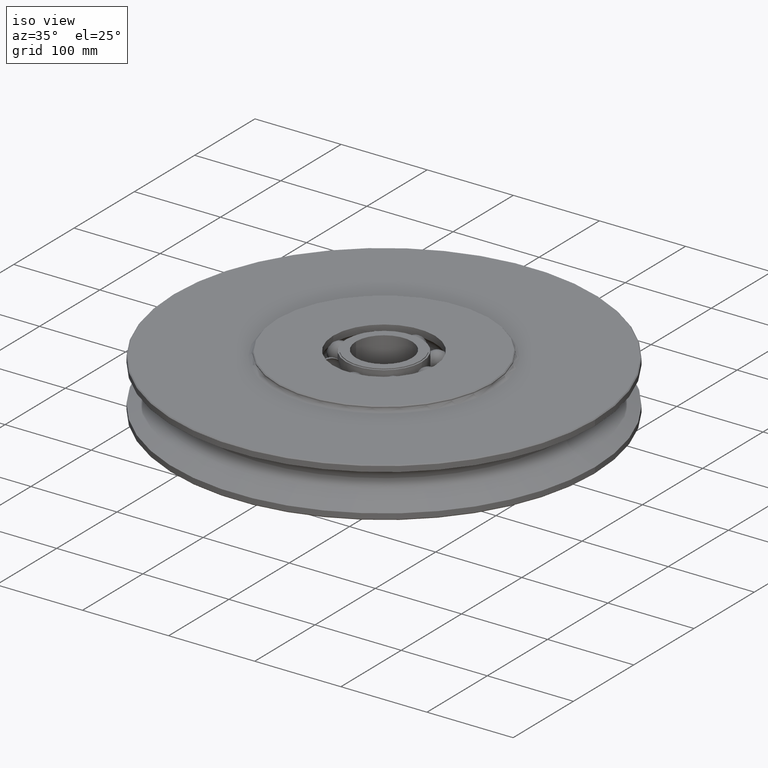
[diagram: clean part render]
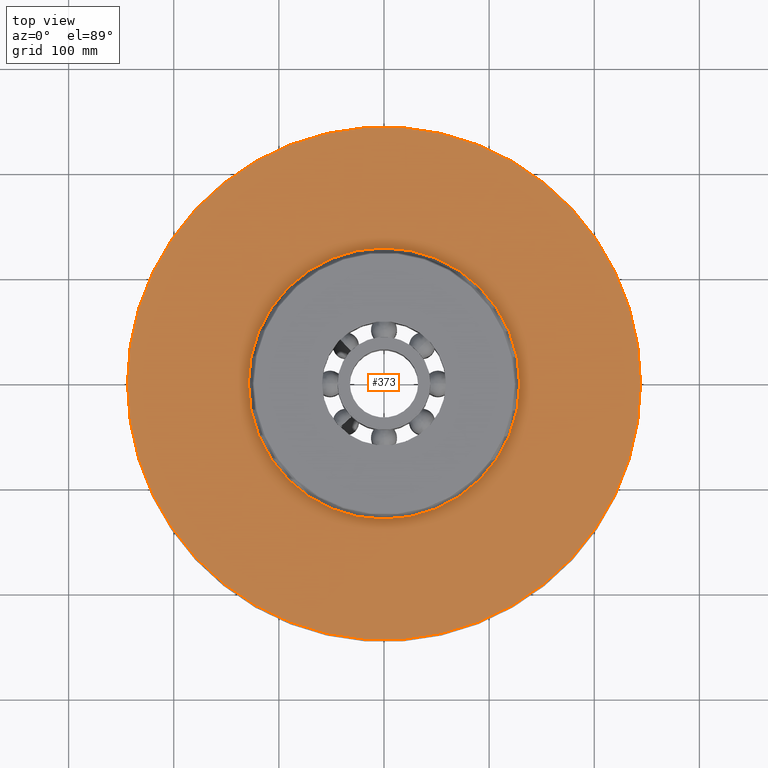
[diagram: tour spotlight — one face highlighted and labeled with its STEP entity id]
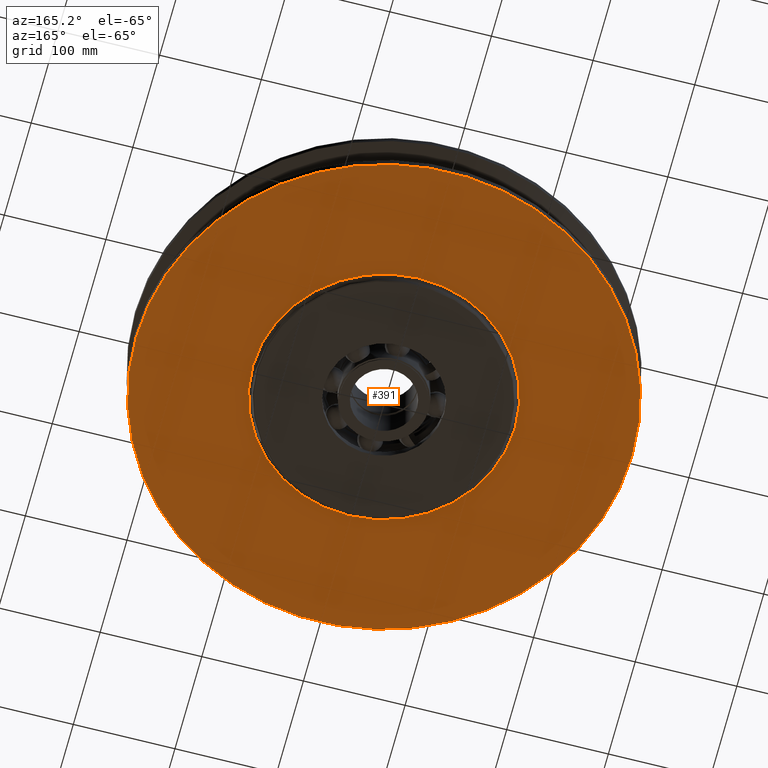
[diagram: tour spotlight — one face highlighted and labeled with its STEP entity id]
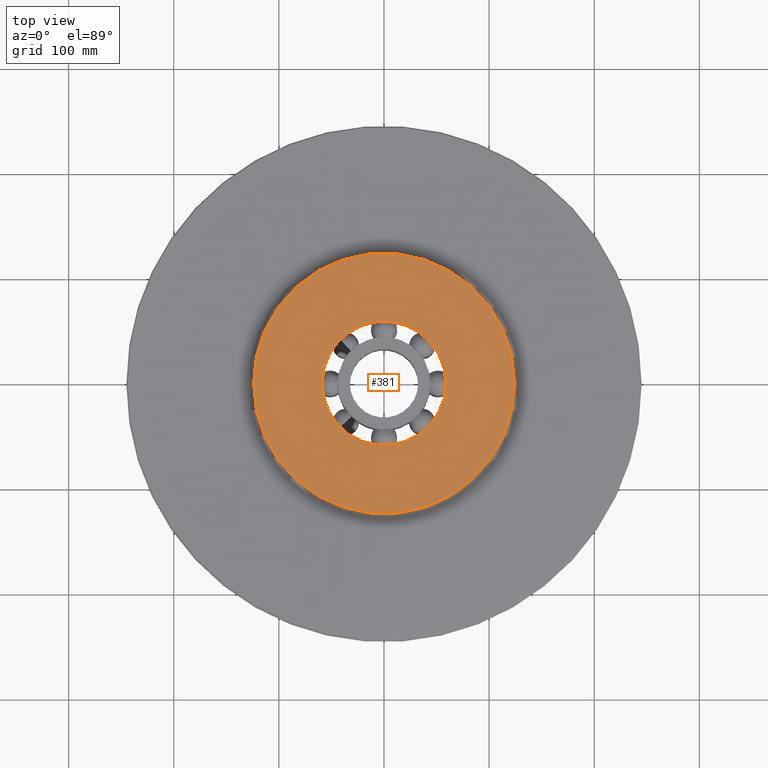
[diagram: tour spotlight — one face highlighted and labeled with its STEP entity id]
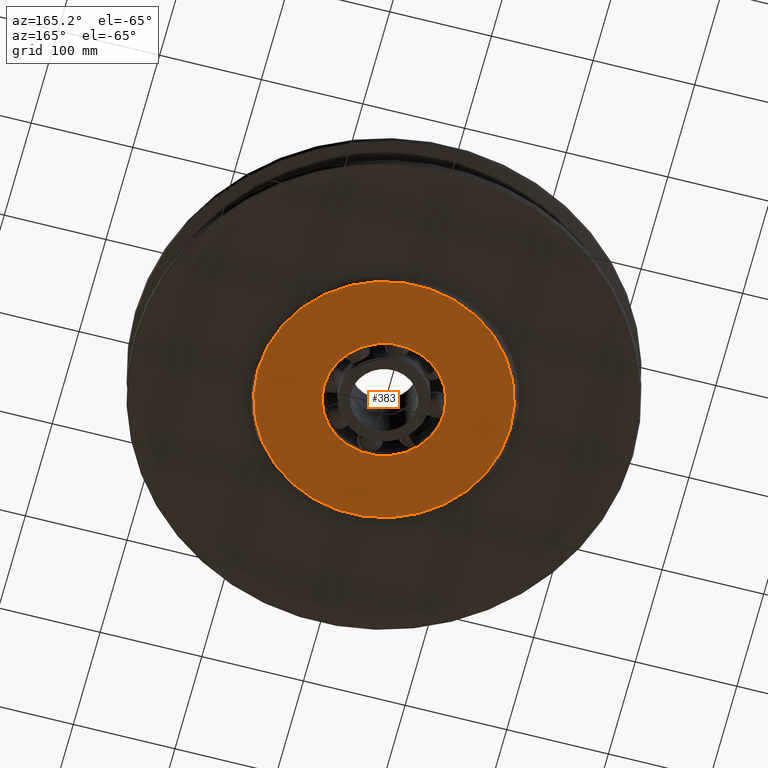
[diagram: tour spotlight — one face highlighted and labeled with its STEP entity id]
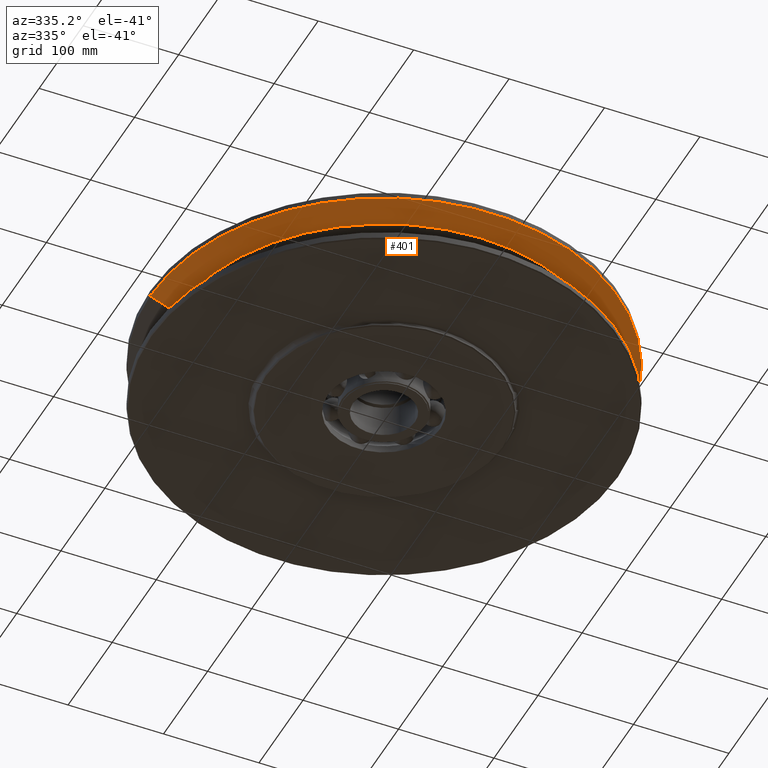
[diagram: tour spotlight — one face highlighted and labeled with its STEP entity id]
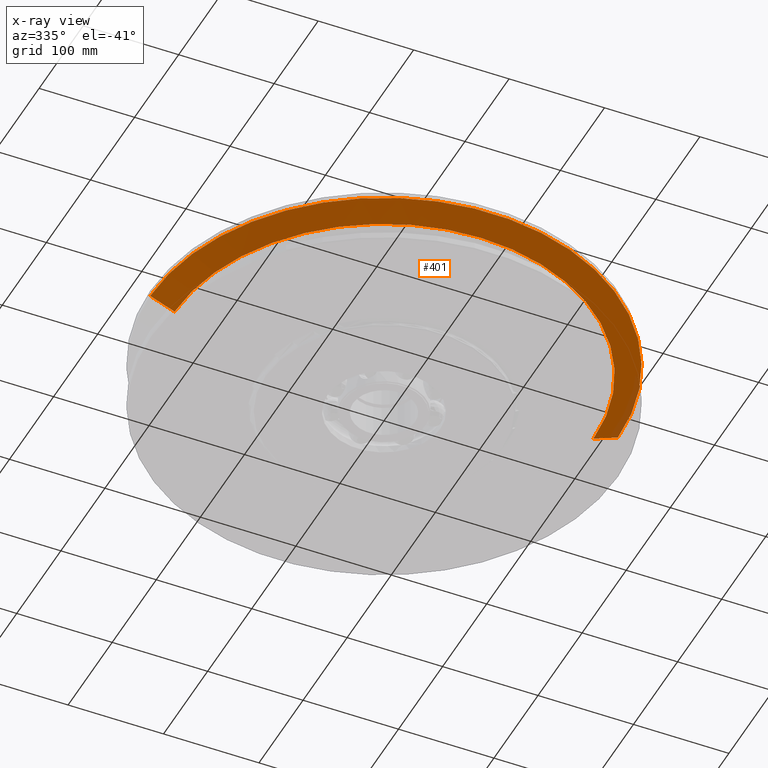
[diagram: x-ray of the same camera — body ghosted, this tour face saturated]
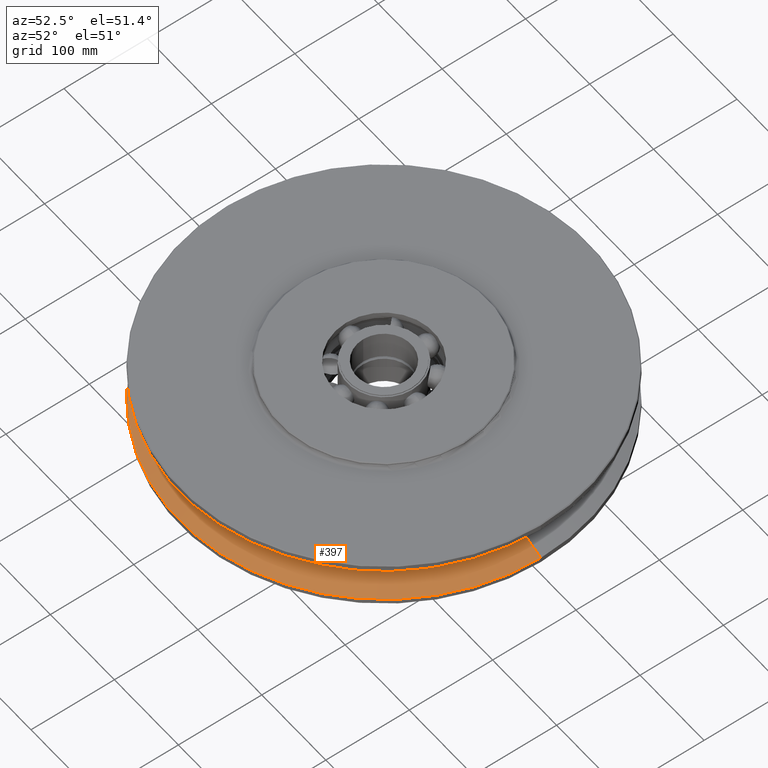
[diagram: tour spotlight — one face highlighted and labeled with its STEP entity id]
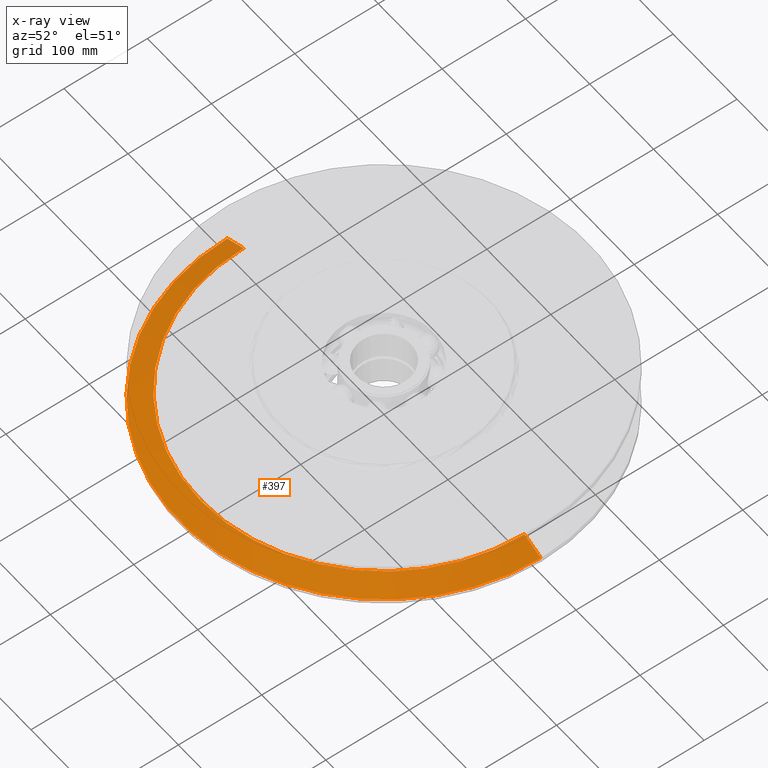
[diagram: x-ray of the same camera — body ghosted, this tour face saturated]
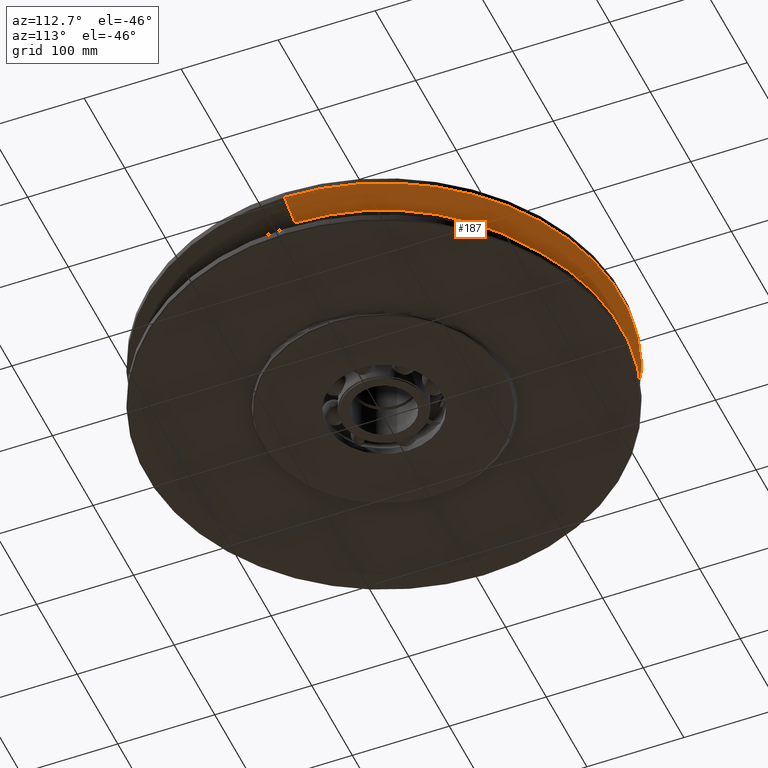
[diagram: tour spotlight — one face highlighted and labeled with its STEP entity id]
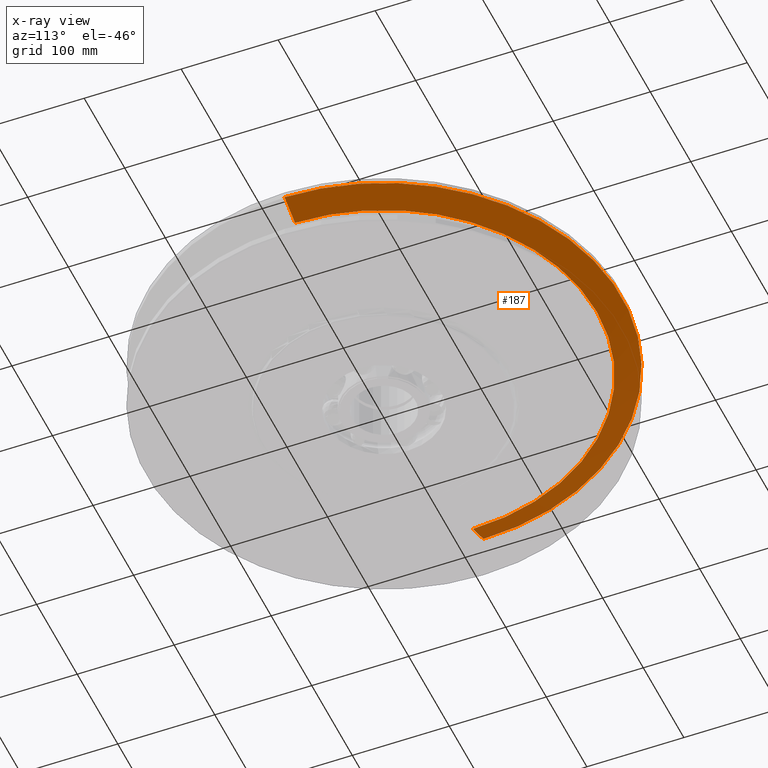
[diagram: x-ray of the same camera — body ghosted, this tour face saturated]
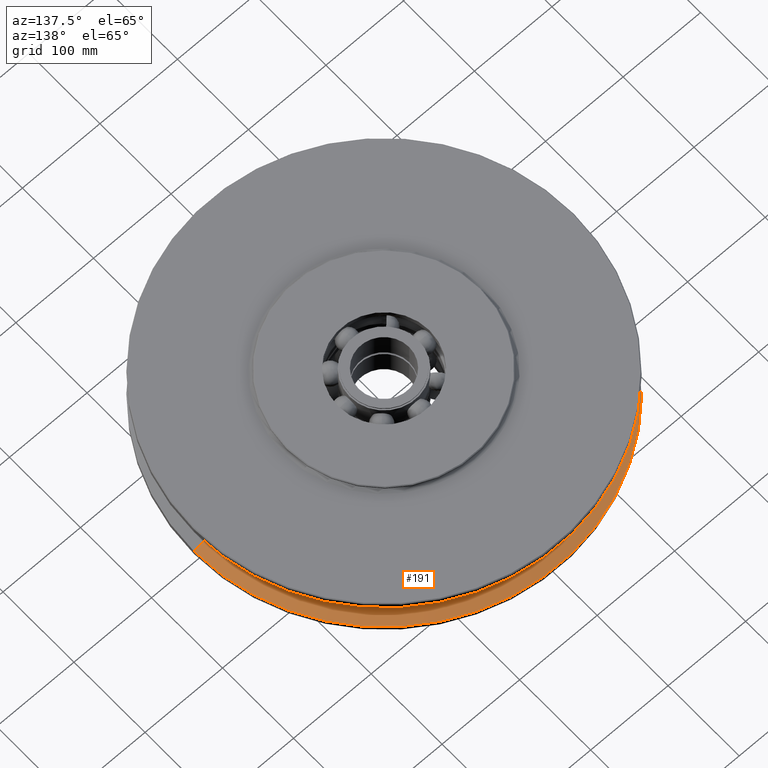
[diagram: tour spotlight — one face highlighted and labeled with its STEP entity id]
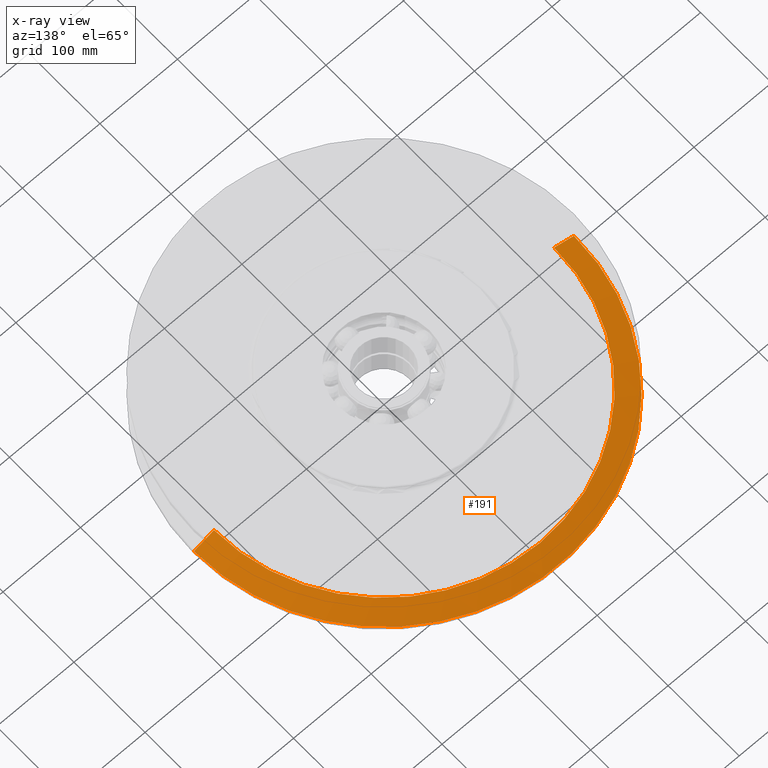
[diagram: x-ray of the same camera — body ghosted, this tour face saturated]
A machine part: a face-by-face anatomy tour. The part has 126 B-rep faces; the first image is the clean iso view, then the 8 largest visible faces are spotlighted one at a time (largest first), each with its STEP entity span.

Face 1 — top view, entity #373. In plain terms, the highlighted planar face has unit normal (0, 0, 1).
Definition (entity closure, byte-faithful):
#373=ADVANCED_FACE('',(#774,#775),#776,.T.);
#774=FACE_BOUND('',#1184,.T.);
#775=FACE_OUTER_BOUND('',#1185,.T.);
#776=PLANE('',#1186);
#1184=EDGE_LOOP('',(#2443,#2444));
#1185=EDGE_LOOP('',(#2445,#2446));
#1186=AXIS2_PLACEMENT_3D('',#2447,#2448,#2449);
#2443=ORIENTED_EDGE('',*,*,#3078,.F.);
#2444=ORIENTED_EDGE('',*,*,#2697,.F.);
#2445=ORIENTED_EDGE('',*,*,#2704,.T.);
#2446=ORIENTED_EDGE('',*,*,#3076,.T.);
#2447=CARTESIAN_POINT('',(186.5,0.0,29.0));
#2448=DIRECTION('',(0.0,0.0,1.0));
#2449=DIRECTION('',(1.0,0.0,0.0));
#2697=EDGE_CURVE('',#3327,#3329,#3330,.T.);
#2704=EDGE_CURVE('',#3335,#3339,#3341,.T.);
#3076=EDGE_CURVE('',#3339,#3335,#3893,.T.);
#3078=EDGE_CURVE('',#3329,#3327,#3895,.T.);
#3327=VERTEX_POINT('',#5376);
#3329=VERTEX_POINT('',#5378);
#3330=CIRCLE('',#5379,129.0);
#3335=VERTEX_POINT('',#5384);
#3339=VERTEX_POINT('',#5389);
#3341=CIRCLE('',#5392,244.0);
#3893=CIRCLE('',#9092,244.0);
#3895=CIRCLE('',#9094,129.0);
#5376=CARTESIAN_POINT('',(-129.0,1.57979437090009E-014,29.0));
#5378=CARTESIAN_POINT('',(129.0,0.0,29.0));
#5379=AXIS2_PLACEMENT_3D('',#9305,#9306,#9307);
#5384=CARTESIAN_POINT('',(244.0,0.0,29.0));
#5389=CARTESIAN_POINT('',(-244.0,2.98813818991954E-014,29.0));
#5392=AXIS2_PLACEMENT_3D('',#9319,#9320,#9321);
#9092=AXIS2_PLACEMENT_3D('',#9704,#9705,#9706);
#9094=AXIS2_PLACEMENT_3D('',#9707,#9708,#9709);
#9305=CARTESIAN_POINT('',(0.0,0.0,29.0));
#9306=DIRECTION('',(0.0,0.0,1.0));
#9307=DIRECTION('',(1.0,0.0,0.0));
#9319=CARTESIAN_POINT('',(0.0,0.0,29.0));
#9320=DIRECTION('',(0.0,0.0,1.0));
#9321=DIRECTION('',(1.0,0.0,0.0));
#9704=CARTESIAN_POINT('',(0.0,0.0,29.0));
#9705=DIRECTION('',(0.0,0.0,1.0));
#9706=DIRECTION('',(1.0,0.0,0.0));
#9707=CARTESIAN_POINT('',(0.0,0.0,29.0));
#9708=DIRECTION('',(0.0,0.0,1.0));
#9709=DIRECTION('',(1.0,0.0,0.0));

Face 2 — auxiliary view, entity #391. In plain terms, the highlighted planar face has unit normal (-0, 0, -1).
Definition (entity closure, byte-faithful):
#391=ADVANCED_FACE('',(#804,#805),#806,.T.);
#804=FACE_OUTER_BOUND('',#1214,.T.);
#805=FACE_BOUND('',#1215,.T.);
#806=PLANE('',#1216);
#1214=EDGE_LOOP('',(#2515,#2516));
#1215=EDGE_LOOP('',(#2517,#2518));
#1216=AXIS2_PLACEMENT_3D('',#2519,#2520,#2521);
#2515=ORIENTED_EDGE('',*,*,#2670,.F.);
#2516=ORIENTED_EDGE('',*,*,#3093,.F.);
#2517=ORIENTED_EDGE('',*,*,#3091,.T.);
#2518=ORIENTED_EDGE('',*,*,#2676,.T.);
#2519=CARTESIAN_POINT('',(186.5,0.0,-29.0));
#2520=DIRECTION('',(-0.0,0.0,-1.0));
#2521=DIRECTION('',(-1.0,-0.0,0.0));
#2670=EDGE_CURVE('',#3284,#3286,#3287,.T.);
#2676=EDGE_CURVE('',#3291,#3295,#3297,.T.);
#3091=EDGE_CURVE('',#3295,#3291,#3908,.T.);
#3093=EDGE_CURVE('',#3286,#3284,#3910,.T.);
#3284=VERTEX_POINT('',#5323);
#3286=VERTEX_POINT('',#5326);
#3287=CIRCLE('',#5327,244.0);
#3291=VERTEX_POINT('',#5332);
#3295=VERTEX_POINT('',#5336);
#3297=CIRCLE('',#5338,129.0);
#3908=CIRCLE('',#9107,129.0);
#3910=CIRCLE('',#9109,244.0);
#5323=CARTESIAN_POINT('',(244.0,0.0,-29.0));
#5326=CARTESIAN_POINT('',(-244.0,2.98813818991954E-014,-29.0));
#5327=AXIS2_PLACEMENT_3D('',#9260,#9261,#9262);
#5332=CARTESIAN_POINT('',(-129.0,1.57979437090009E-014,-29.0));
#5336=CARTESIAN_POINT('',(129.0,0.0,-29.0));
#5338=AXIS2_PLACEMENT_3D('',#9273,#9274,#9275);
#9107=AXIS2_PLACEMENT_3D('',#9722,#9723,#9724);
#9109=AXIS2_PLACEMENT_3D('',#9725,#9726,#9727);
#9260=CARTESIAN_POINT('',(0.0,0.0,-29.0));
#9261=DIRECTION('',(0.0,0.0,1.0));
#9262=DIRECTION('',(1.0,0.0,0.0));
#9273=CARTESIAN_POINT('',(0.0,0.0,-29.0));
#9274=DIRECTION('',(0.0,0.0,1.0));
#9275=DIRECTION('',(1.0,0.0,0.0));
#9722=CARTESIAN_POINT('',(0.0,0.0,-29.0));
#9723=DIRECTION('',(0.0,0.0,1.0));
#9724=DIRECTION('',(1.0,0.0,0.0));
#9725=CARTESIAN_POINT('',(0.0,0.0,-29.0));
#9726=DIRECTION('',(0.0,0.0,1.0));
#9727=DIRECTION('',(1.0,0.0,0.0));

Face 3 — top view, entity #381. In plain terms, the highlighted planar face has unit normal (0, 0, 1).
Definition (entity closure, byte-faithful):
#381=ADVANCED_FACE('',(#787,#788),#789,.T.);
#787=FACE_BOUND('',#1197,.T.);
#788=FACE_OUTER_BOUND('',#1198,.T.);
#789=PLANE('',#1199);
#1197=EDGE_LOOP('',(#2475,#2476));
#1198=EDGE_LOOP('',(#2477,#2478));
#1199=AXIS2_PLACEMENT_3D('',#2479,#2480,#2481);
#2475=ORIENTED_EDGE('',*,*,#3041,.T.);
#2476=ORIENTED_EDGE('',*,*,#2786,.T.);
#2477=ORIENTED_EDGE('',*,*,#2690,.T.);
#2478=ORIENTED_EDGE('',*,*,#3083,.T.);
#2479=CARTESIAN_POINT('',(62.0,0.0,35.0));
#2480=DIRECTION('',(0.0,0.0,1.0));
#2481=DIRECTION('',(1.0,0.0,0.0));
#2690=EDGE_CURVE('',#3313,#3317,#3319,.T.);
#2786=EDGE_CURVE('',#3479,#3477,#3480,.T.);
#3041=EDGE_CURVE('',#3477,#3479,#3858,.T.);
#3083=EDGE_CURVE('',#3317,#3313,#3900,.T.);
#3313=VERTEX_POINT('',#5358);
#3317=VERTEX_POINT('',#5363);
#3319=CIRCLE('',#5366,124.0);
#3477=VERTEX_POINT('',#6265);
#3479=VERTEX_POINT('',#6268);
#3480=CIRCLE('',#6269,59.0);
#3858=CIRCLE('',#8752,59.0);
#3900=CIRCLE('',#9099,124.0);
#5358=CARTESIAN_POINT('',(124.0,0.0,35.0));
#5363=CARTESIAN_POINT('',(-124.0,1.51856203094272E-014,35.0));
#5366=AXIS2_PLACEMENT_3D('',#9294,#9295,#9296);
#6265=CARTESIAN_POINT('',(59.0,0.0,35.0));
#6268=CARTESIAN_POINT('',(-59.0,7.22541611496938E-015,35.0));
#6269=AXIS2_PLACEMENT_3D('',#9422,#9423,#9424);
#8752=AXIS2_PLACEMENT_3D('',#9689,#9690,#9691);
#9099=AXIS2_PLACEMENT_3D('',#9713,#9714,#9715);
#9294=CARTESIAN_POINT('',(0.0,0.0,35.0));
#9295=DIRECTION('',(0.0,0.0,1.0));
#9296=DIRECTION('',(1.0,0.0,0.0));
#9422=CARTESIAN_POINT('',(0.0,0.0,35.0));
#9423=DIRECTION('',(0.0,0.0,-1.0));
#9424=DIRECTION('',(1.0,0.0,0.0));
#9689=CARTESIAN_POINT('',(0.0,0.0,35.0));
#9690=DIRECTION('',(0.0,0.0,-1.0));
#9691=DIRECTION('',(1.0,0.0,0.0));
#9713=CARTESIAN_POINT('',(0.0,0.0,35.0));
#9714=DIRECTION('',(0.0,0.0,1.0));
#9715=DIRECTION('',(1.0,0.0,0.0));

Face 4 — auxiliary view, entity #383. In plain terms, the highlighted planar face has unit normal (-0, 0, -1).
Definition (entity closure, byte-faithful):
#383=ADVANCED_FACE('',(#791,#792),#793,.T.);
#791=FACE_BOUND('',#1201,.T.);
#792=FACE_OUTER_BOUND('',#1202,.T.);
#793=PLANE('',#1203);
#1201=EDGE_LOOP('',(#2483,#2484));
#1202=EDGE_LOOP('',(#2485,#2486));
#1203=AXIS2_PLACEMENT_3D('',#2487,#2488,#2489);
#2483=ORIENTED_EDGE('',*,*,#2984,.T.);
#2484=ORIENTED_EDGE('',*,*,#2898,.T.);
#2485=ORIENTED_EDGE('',*,*,#2684,.F.);
#2486=ORIENTED_EDGE('',*,*,#3086,.F.);
#2487=CARTESIAN_POINT('',(62.0,0.0,-35.0));
#2488=DIRECTION('',(-0.0,0.0,-1.0));
#2489=DIRECTION('',(-1.0,-0.0,0.0));
#2684=EDGE_CURVE('',#3306,#3308,#3309,.T.);
#2898=EDGE_CURVE('',#3667,#3665,#3668,.T.);
#2984=EDGE_CURVE('',#3665,#3667,#3793,.T.);
#3086=EDGE_CURVE('',#3308,#3306,#3903,.T.);
#3306=VERTEX_POINT('',#5349);
#3308=VERTEX_POINT('',#5352);
#3309=CIRCLE('',#5353,124.0);
#3665=VERTEX_POINT('',#7479);
#3667=VERTEX_POINT('',#7482);
#3668=CIRCLE('',#7483,59.0);
#3793=CIRCLE('',#8143,59.0);
#3903=CIRCLE('',#9102,124.0);
#5349=CARTESIAN_POINT('',(124.0,0.0,-35.0));
#5352=CARTESIAN_POINT('',(-124.0,1.51856203094272E-014,-35.0));
#5353=AXIS2_PLACEMENT_3D('',#9285,#9286,#9287);
#7479=CARTESIAN_POINT('',(59.0,0.0,-35.0));
#7482=CARTESIAN_POINT('',(-59.0,-7.22541611496938E-015,-35.0));
#7483=AXIS2_PLACEMENT_3D('',#9558,#9559,#9560);
#8143=AXIS2_PLACEMENT_3D('',#9659,#9660,#9661);
#9102=AXIS2_PLACEMENT_3D('',#9716,#9717,#9718);
#9285=CARTESIAN_POINT('',(0.0,0.0,-35.0));
#9286=DIRECTION('',(0.0,0.0,1.0));
#9287=DIRECTION('',(1.0,0.0,0.0));
#9558=CARTESIAN_POINT('',(0.0,0.0,-35.0));
#9559=DIRECTION('',(0.0,-0.0,1.0));
#9560=DIRECTION('',(1.0,0.0,0.0));
#9659=CARTESIAN_POINT('',(0.0,0.0,-35.0));
#9660=DIRECTION('',(0.0,-0.0,1.0));
#9661=DIRECTION('',(1.0,0.0,0.0));
#9716=CARTESIAN_POINT('',(0.0,0.0,-35.0));
#9717=DIRECTION('',(0.0,0.0,1.0));
#9718=DIRECTION('',(1.0,0.0,0.0));

Face 5 — auxiliary view, entity #401. An x-ray twin of the same camera follows (body ghosted, this face saturated) — the face is partly hidden behind the body. In plain terms, the highlighted conical surface has half-angle 67.5 deg.
Definition (entity closure, byte-faithful):
#401=ADVANCED_FACE('',(#820),#821,.T.);
#820=FACE_OUTER_BOUND('',#1230,.T.);
#821=CONICAL_SURFACE('',#1231,232.2038995,1.17809723659734);
#1230=EDGE_LOOP('',(#2555,#2556,#2557,#2558));
#1231=AXIS2_PLACEMENT_3D('',#2559,#2560,#2561);
#2555=ORIENTED_EDGE('',*,*,#2652,.T.);
#2556=ORIENTED_EDGE('',*,*,#3074,.F.);
#2557=ORIENTED_EDGE('',*,*,#2653,.T.);
#2558=ORIENTED_EDGE('',*,*,#2650,.T.);
#2559=CARTESIAN_POINT('',(0.0,0.0,16.3868725));
#2560=DIRECTION('',(-0.0,-0.0,1.0));
#2561=DIRECTION('',(1.0,0.0,0.0));
#2650=EDGE_CURVE('',#3106,#3108,#3257,.T.);
#2652=EDGE_CURVE('',#3108,#3259,#3260,.T.);
#2653=EDGE_CURVE('',#3261,#3106,#3262,.T.);
#3074=EDGE_CURVE('',#3261,#3259,#3891,.T.);
#3106=VERTEX_POINT('',#3923);
#3108=VERTEX_POINT('',#3925);
#3257=CIRCLE('',#5290,219.407799);
#3259=VERTEX_POINT('',#5292);
#3260=LINE('',#5293,#5294);
#3261=VERTEX_POINT('',#5295);
#3262=LINE('',#5296,#5297);
#3891=CIRCLE('',#9090,245.0);
#3923=CARTESIAN_POINT('',(-219.407799,2.68697058753316E-014,11.086554));
#3925=CARTESIAN_POINT('',(219.407799,0.0,11.086554));
#5290=AXIS2_PLACEMENT_3D('',#9229,#9230,#9231);
#5292=CARTESIAN_POINT('',(245.0,0.0,21.687191));
#5293=CARTESIAN_POINT('',(232.2038995,-2.84367762272209E-014,16.3868725));
#5294=VECTOR('',#9232,1.0);
#5295=CARTESIAN_POINT('',(-245.0,3.00038465791101E-014,21.687191));
#5296=CARTESIAN_POINT('',(-232.2038995,2.84367762272209E-014,16.3868725));
#5297=VECTOR('',#9233,1.0);
#9090=AXIS2_PLACEMENT_3D('',#9701,#9702,#9703);
#9229=CARTESIAN_POINT('',(0.0,0.0,11.086554));
#9230=DIRECTION('',(0.0,0.0,1.0));
#9231=DIRECTION('',(1.0,0.0,0.0));
#9232=DIRECTION('',(0.923879529258923,-1.1314261083047E-016,0.382683440216991));
#9233=DIRECTION('',(0.923879529258923,-1.1314261083047E-016,-0.382683440216991));
#9701=CARTESIAN_POINT('',(0.0,0.0,21.687191));
#9702=DIRECTION('',(0.0,0.0,1.0));
#9703=DIRECTION('',(1.0,0.0,0.0));

Face 6 — auxiliary view, entity #397. An x-ray twin of the same camera follows (body ghosted, this face saturated) — the face is partly hidden behind the body. In plain terms, the highlighted conical surface has half-angle 67.5 deg.
Definition (entity closure, byte-faithful):
#397=ADVANCED_FACE('',(#814),#815,.T.);
#814=FACE_OUTER_BOUND('',#1224,.T.);
#815=CONICAL_SURFACE('',#1225,232.2038995,1.17809723659734);
#1224=EDGE_LOOP('',(#2539,#2540,#2541,#2542));
#1225=AXIS2_PLACEMENT_3D('',#2543,#2544,#2545);
#2539=ORIENTED_EDGE('',*,*,#2660,.T.);
#2540=ORIENTED_EDGE('',*,*,#2657,.F.);
#2541=ORIENTED_EDGE('',*,*,#2662,.T.);
#2542=ORIENTED_EDGE('',*,*,#3097,.T.);
#2543=CARTESIAN_POINT('',(0.0,0.0,-16.3868725));
#2544=DIRECTION('',(-0.0,-0.0,-1.0));
#2545=DIRECTION('',(1.0,0.0,0.0));
#2657=EDGE_CURVE('',#3265,#3267,#3268,.T.);
#2660=EDGE_CURVE('',#3271,#3267,#3272,.T.);
#2662=EDGE_CURVE('',#3265,#3273,#3275,.T.);
#3097=EDGE_CURVE('',#3273,#3271,#3914,.T.);
#3265=VERTEX_POINT('',#5300);
#3267=VERTEX_POINT('',#5302);
#3268=CIRCLE('',#5303,219.407799);
#3271=VERTEX_POINT('',#5306);
#3272=LINE('',#5307,#5308);
#3273=VERTEX_POINT('',#5309);
#3275=LINE('',#5311,#5312);
#3914=CIRCLE('',#9113,245.0);
#5300=CARTESIAN_POINT('',(-219.407799,2.68697058753316E-014,-11.086554));
#5302=CARTESIAN_POINT('',(219.407799,0.0,-11.086554));
#5303=AXIS2_PLACEMENT_3D('',#9240,#9241,#9242);
#5306=CARTESIAN_POINT('',(245.0,0.0,-21.687191));
#5307=CARTESIAN_POINT('',(232.2038995,-2.84367762272209E-014,-16.3868725));
#5308=VECTOR('',#9246,1.0);
#5309=CARTESIAN_POINT('',(-245.0,3.00038465791101E-014,-21.687191));
#5311=CARTESIAN_POINT('',(-232.2038995,2.84367762272209E-014,-16.3868725));
#5312=VECTOR('',#9250,1.0);
#9113=AXIS2_PLACEMENT_3D('',#9731,#9732,#9733);
#9240=CARTESIAN_POINT('',(0.0,0.0,-11.086554));
#9241=DIRECTION('',(0.0,0.0,1.0));
#9242=DIRECTION('',(1.0,0.0,0.0));
#9246=DIRECTION('',(-0.923879529258923,1.1314261083047E-016,0.382683440216991));
#9250=DIRECTION('',(-0.923879529258923,1.1314261083047E-016,-0.382683440216991));
#9731=CARTESIAN_POINT('',(0.0,0.0,-21.687191));
#9732=DIRECTION('',(0.0,0.0,1.0));
#9733=DIRECTION('',(1.0,0.0,0.0));

Face 7 — auxiliary view, entity #187. An x-ray twin of the same camera follows (body ghosted, this face saturated) — the face is partly hidden behind the body. In plain terms, the highlighted conical surface has half-angle 67.5 deg.
Definition (entity closure, byte-faithful):
#187=ADVANCED_FACE('',(#475),#476,.T.);
#475=FACE_OUTER_BOUND('',#885,.T.);
#476=CONICAL_SURFACE('',#886,232.2038995,1.17809723659734);
#885=EDGE_LOOP('',(#1379,#1380,#1381,#1382));
#886=AXIS2_PLACEMENT_3D('',#1383,#1384,#1385);
#1379=ORIENTED_EDGE('',*,*,#2652,.F.);
#1380=ORIENTED_EDGE('',*,*,#2566,.T.);
#1381=ORIENTED_EDGE('',*,*,#2653,.F.);
#1382=ORIENTED_EDGE('',*,*,#2654,.F.);
#1383=CARTESIAN_POINT('',(0.0,0.0,16.3868725));
#1384=DIRECTION('',(-0.0,-0.0,1.0));
#1385=DIRECTION('',(1.0,0.0,0.0));
#2566=EDGE_CURVE('',#3108,#3106,#3109,.T.);
#2652=EDGE_CURVE('',#3108,#3259,#3260,.T.);
#2653=EDGE_CURVE('',#3261,#3106,#3262,.T.);
#2654=EDGE_CURVE('',#3259,#3261,#3263,.T.);
#3106=VERTEX_POINT('',#3923);
#3108=VERTEX_POINT('',#3925);
#3109=CIRCLE('',#3926,219.407799);
#3259=VERTEX_POINT('',#5292);
#3260=LINE('',#5293,#5294);
#3261=VERTEX_POINT('',#5295);
#3262=LINE('',#5296,#5297);
#3263=CIRCLE('',#5298,245.0);
#3923=CARTESIAN_POINT('',(-219.407799,2.68697058753316E-014,11.086554));
#3925=CARTESIAN_POINT('',(219.407799,0.0,11.086554));
#3926=AXIS2_PLACEMENT_3D('',#9124,#9125,#9126);
#5292=CARTESIAN_POINT('',(245.0,0.0,21.687191));
#5293=CARTESIAN_POINT('',(232.2038995,-2.84367762272209E-014,16.3868725));
#5294=VECTOR('',#9232,1.0);
#5295=CARTESIAN_POINT('',(-245.0,3.00038465791101E-014,21.687191));
#5296=CARTESIAN_POINT('',(-232.2038995,2.84367762272209E-014,16.3868725));
#5297=VECTOR('',#9233,1.0);
#5298=AXIS2_PLACEMENT_3D('',#9234,#9235,#9236);
#9124=CARTESIAN_POINT('',(0.0,0.0,11.086554));
#9125=DIRECTION('',(0.0,0.0,1.0));
#9126=DIRECTION('',(1.0,0.0,0.0));
#9232=DIRECTION('',(0.923879529258923,-1.1314261083047E-016,0.382683440216991));
#9233=DIRECTION('',(0.923879529258923,-1.1314261083047E-016,-0.382683440216991));
#9234=CARTESIAN_POINT('',(0.0,0.0,21.687191));
#9235=DIRECTION('',(0.0,0.0,1.0));
#9236=DIRECTION('',(1.0,0.0,0.0));

Face 8 — auxiliary view, entity #191. An x-ray twin of the same camera follows (body ghosted, this face saturated) — the face is partly hidden behind the body. In plain terms, the highlighted conical surface has half-angle 67.5 deg.
Definition (entity closure, byte-faithful):
#191=ADVANCED_FACE('',(#481),#482,.T.);
#481=FACE_OUTER_BOUND('',#891,.T.);
#482=CONICAL_SURFACE('',#892,232.2038995,1.17809723659734);
#891=EDGE_LOOP('',(#1395,#1396,#1397,#1398));
#892=AXIS2_PLACEMENT_3D('',#1399,#1400,#1401);
#1395=ORIENTED_EDGE('',*,*,#2660,.F.);
#1396=ORIENTED_EDGE('',*,*,#2661,.T.);
#1397=ORIENTED_EDGE('',*,*,#2662,.F.);
#1398=ORIENTED_EDGE('',*,*,#2663,.F.);
#1399=CARTESIAN_POINT('',(0.0,0.0,-16.3868725));
#1400=DIRECTION('',(-0.0,-0.0,-1.0));
#1401=DIRECTION('',(1.0,0.0,0.0));
#2660=EDGE_CURVE('',#3271,#3267,#3272,.T.);
#2661=EDGE_CURVE('',#3271,#3273,#3274,.T.);
#2662=EDGE_CURVE('',#3265,#3273,#3275,.T.);
#2663=EDGE_CURVE('',#3267,#3265,#3276,.T.);
#3265=VERTEX_POINT('',#5300);
#3267=VERTEX_POINT('',#5302);
#3271=VERTEX_POINT('',#5306);
#3272=LINE('',#5307,#5308);
#3273=VERTEX_POINT('',#5309);
#3274=CIRCLE('',#5310,245.0);
#3275=LINE('',#5311,#5312);
#3276=CIRCLE('',#5313,219.407799);
#5300=CARTESIAN_POINT('',(-219.407799,2.68697058753316E-014,-11.086554));
#5302=CARTESIAN_POINT('',(219.407799,0.0,-11.086554));
#5306=CARTESIAN_POINT('',(245.0,0.0,-21.687191));
#5307=CARTESIAN_POINT('',(232.2038995,-2.84367762272209E-014,-16.3868725));
#5308=VECTOR('',#9246,1.0);
#5309=CARTESIAN_POINT('',(-245.0,3.00038465791101E-014,-21.687191));
#5310=AXIS2_PLACEMENT_3D('',#9247,#9248,#9249);
#5311=CARTESIAN_POINT('',(-232.2038995,2.84367762272209E-014,-16.3868725));
#5312=VECTOR('',#9250,1.0);
#5313=AXIS2_PLACEMENT_3D('',#9251,#9252,#9253);
#9246=DIRECTION('',(-0.923879529258923,1.1314261083047E-016,0.382683440216991));
#9247=CARTESIAN_POINT('',(0.0,0.0,-21.687191));
#9248=DIRECTION('',(0.0,0.0,1.0));
#9249=DIRECTION('',(1.0,0.0,0.0));
#9250=DIRECTION('',(-0.923879529258923,1.1314261083047E-016,-0.382683440216991));
#9251=CARTESIAN_POINT('',(0.0,0.0,-11.086554));
#9252=DIRECTION('',(0.0,0.0,1.0));
#9253=DIRECTION('',(1.0,0.0,0.0));